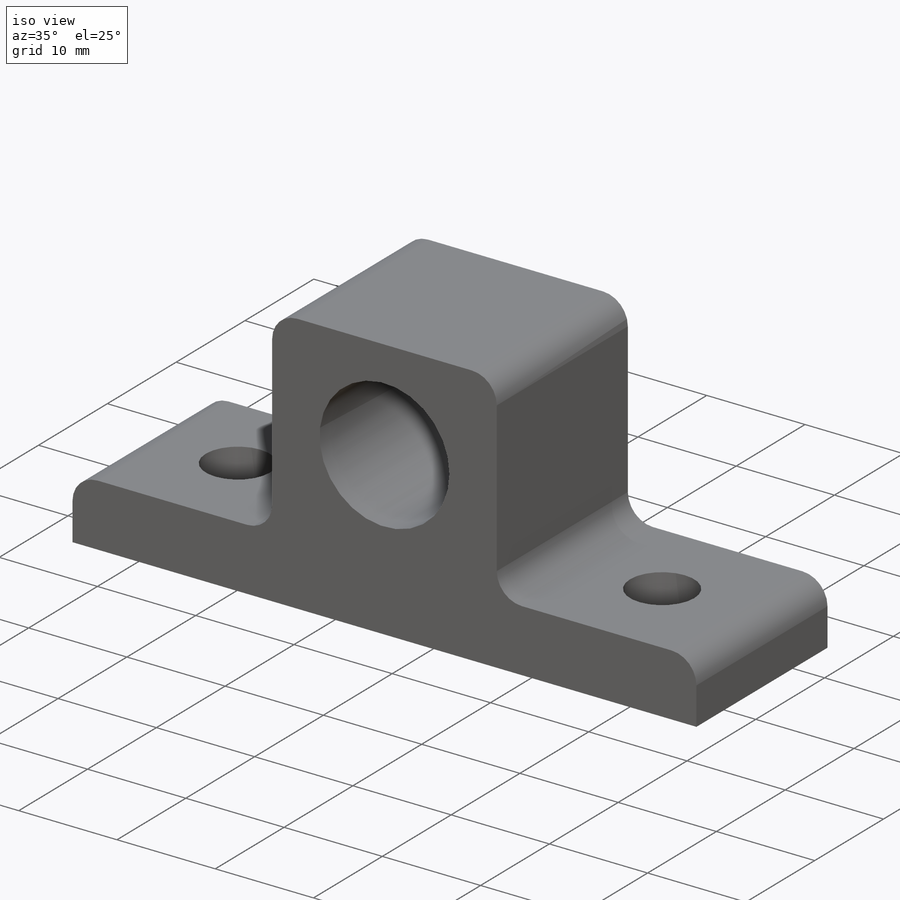
[diagram: iso view]
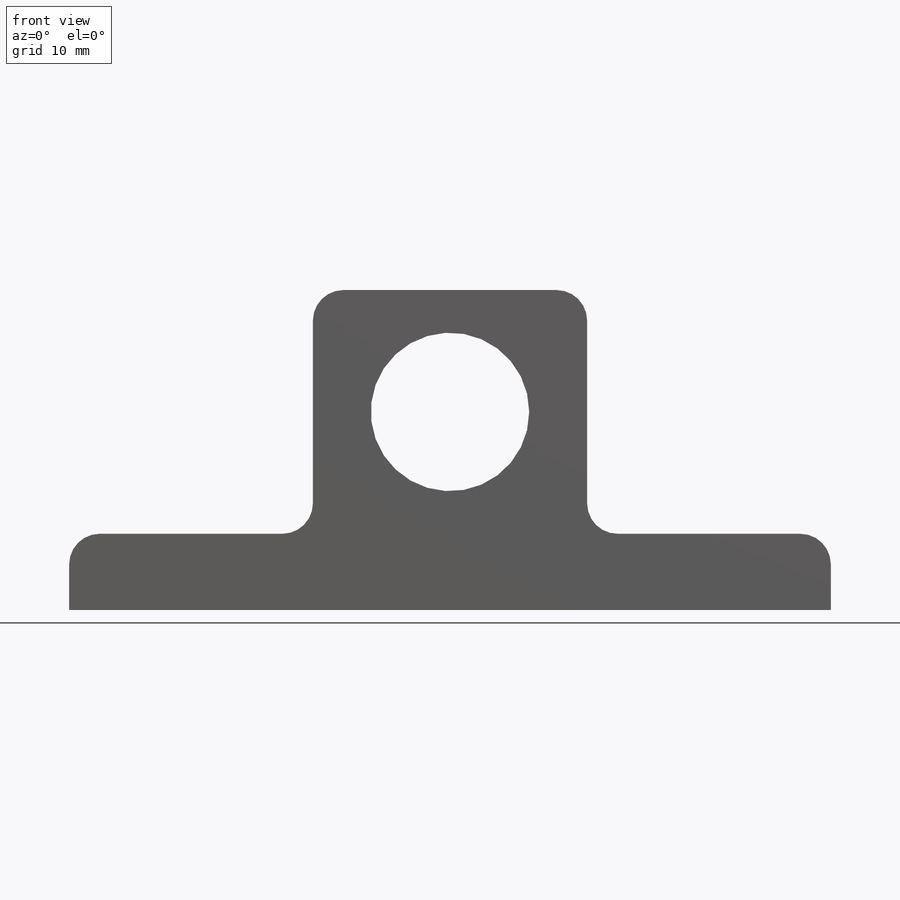
[diagram: front view]
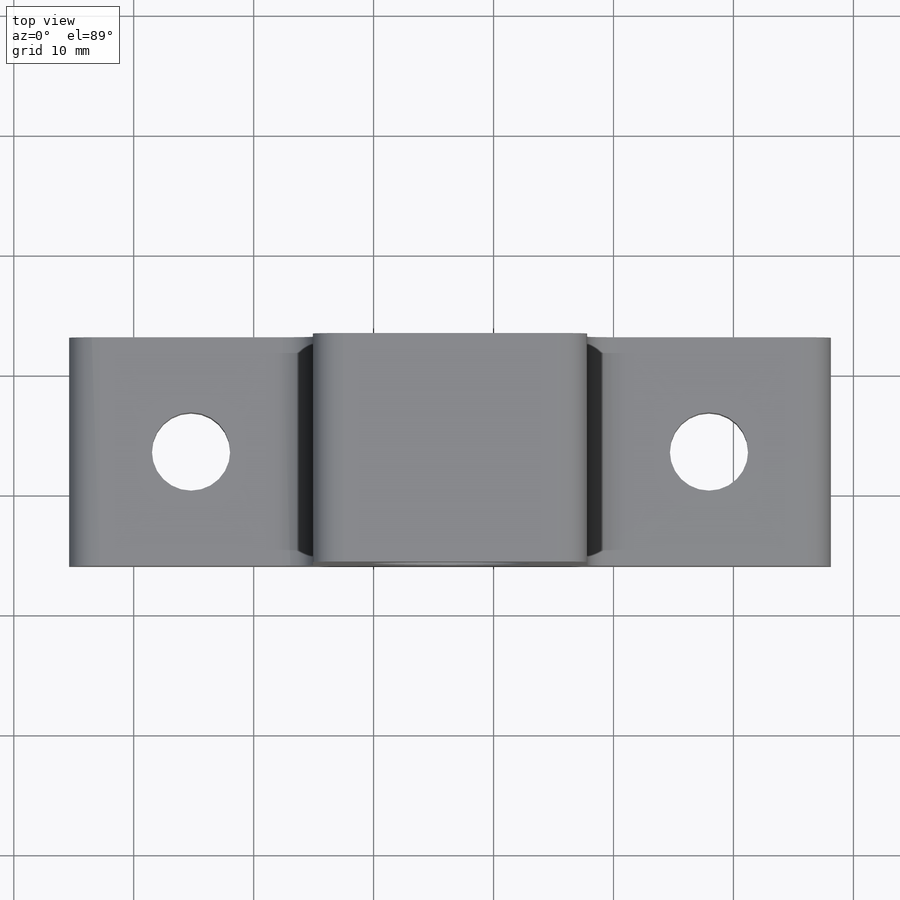
[diagram: top view]
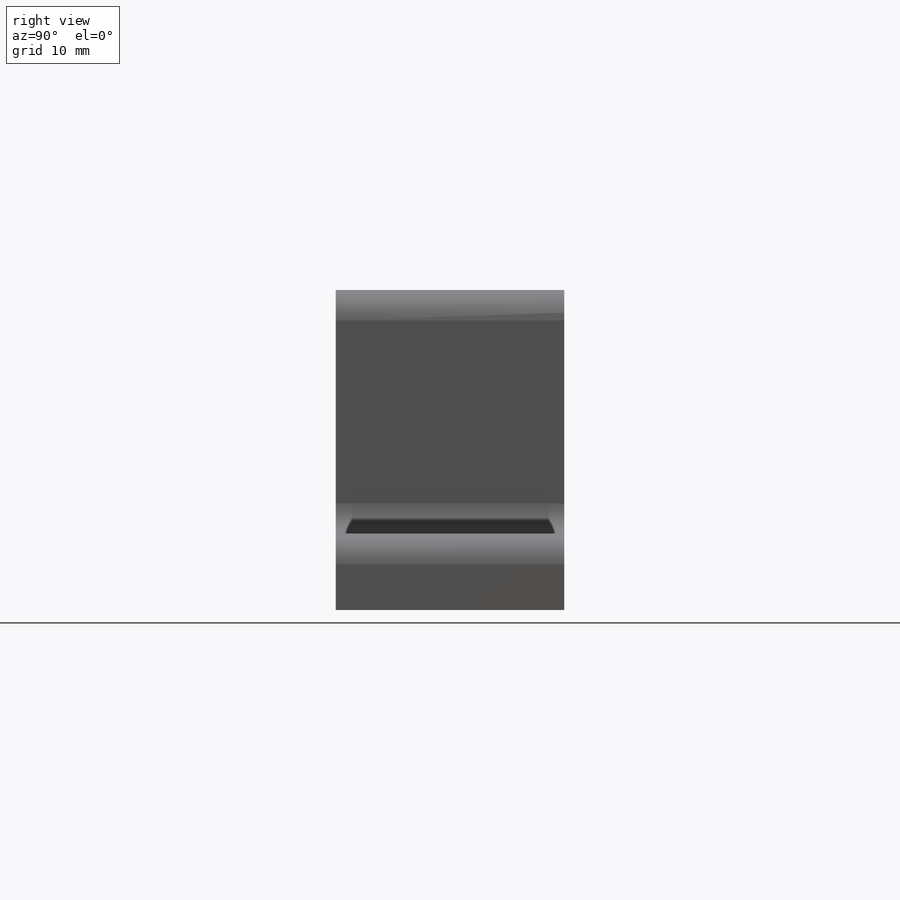
[diagram: right view]
SOLIDWORKS PART (.sldprt)
format: sldprt  version: not decoded by parser v0  size: 218,112 bytes
history: native  units: mm
features: sketch x3, extrude x2, material x1, cut_extrude x1, fillet x1 (+12 scaffold rows collapsed)
feature tree (20):
  scaffold x12  (default folders/planes/origin — collapsed)
  material  "Material <not specified>"
  sketch  "Sketch1"  dims[c1.D7=6.5278mm c1.D8=6.5278mm c1.D1=19.05mm c1.D2=63.5mm c1.D3=10.16mm c1.D4=10.16mm c1.D5=9.525mm c1.D6=9.525mm c2.D7=50.8mm c2.D9=7.62mm c2.D10=7.62mm c2.D11=20.32mm c3.D10=7.62mm]
  extrude  "Boss-Extrude3"  Depth=6.35mm
  sketch  "Sketch3"  dims[D1=10.16mm D2=10.16mm D3=20.32mm]
  extrude  "Boss-Extrude4"  Depth=20.32mm
  sketch  "Sketch6"  dims[D3=13.208mm D1=11.43mm D2=10.16mm D4=20.32mm]
  cut_extrude  "Cut-Extrude1"  Depth=20.32mm
  fillet  "Fillet5"  Radius=2.54mm
decode coverage: 7 of 7 modeling features carry decoded parameters
note: suppression state not decoded; provenance and decode notes live in map.json
